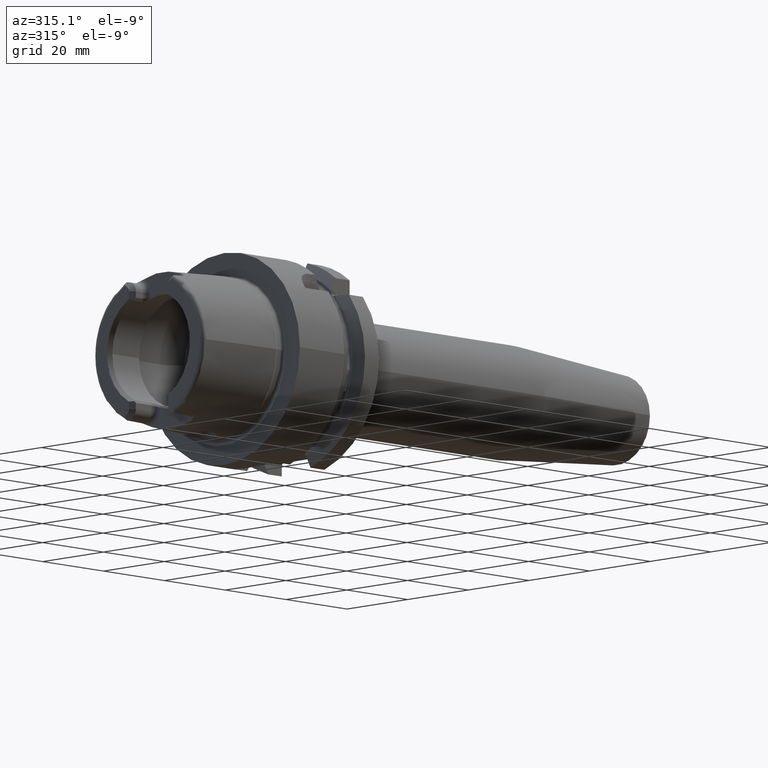
[diagram: clean part render]
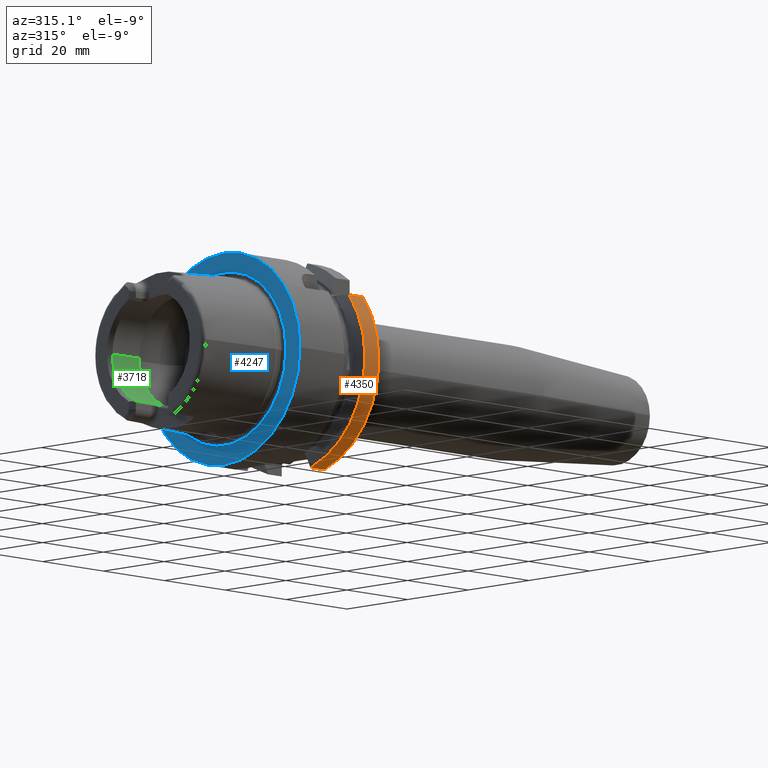
[diagram: same view with three faces highlighted in distinct colors, each labeled with its STEP entity id]
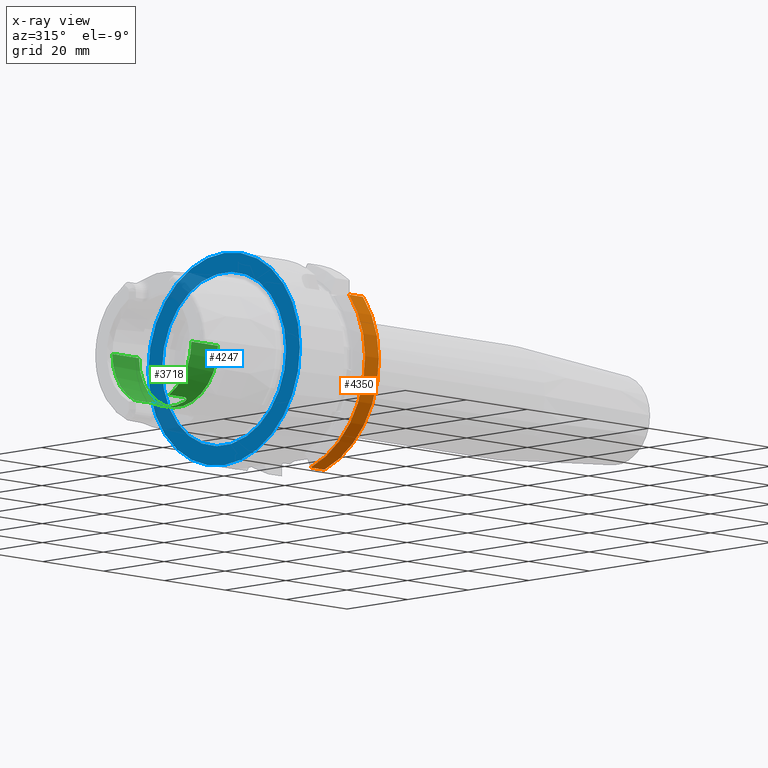
[diagram: x-ray of the same camera — body ghosted, the three highlighted faces saturated]
A machine part, auxiliary view with three faces highlighted in distinct colors.
The next image is the same camera in x-ray (body ghosted, the three faces saturated) — at least one of them is partly hidden behind the body in this view.
Their STEP definitions:

[orange] entity #4350 — the highlighted cylindrical surface (partial cylindrical patch) has radius 25 mm, axis along (1, 0, 0).
#1019=CARTESIAN_POINT('',(2.595E1,0.E0,0.E0));
#1020=DIRECTION('',(1.E0,0.E0,0.E0));
#1021=DIRECTION('',(0.E0,-7.893060243024E-1,6.14E-1));
#1022=AXIS2_PLACEMENT_3D('',#1019,#1020,#1021);
#1024=DIRECTION('',(1.E0,0.E0,0.E0));
#1025=VECTOR('',#1024,4.558067168511E0);
#1026=CARTESIAN_POINT('',(2.139193283149E1,-7.0175E0,-2.399488890889E1));
#1027=LINE('',#1026,#1025);
#1028=CARTESIAN_POINT('',(2.139193283149E1,0.E0,0.E0));
#1029=DIRECTION('',(-1.E0,0.E0,0.E0));
#1030=DIRECTION('',(0.E0,-2.807E-1,-9.597955563556E-1));
#1031=AXIS2_PLACEMENT_3D('',#1028,#1029,#1030);
#1033=DIRECTION('',(1.E0,0.E0,0.E0));
#1034=VECTOR('',#1033,4.558067168511E0);
#1035=CARTESIAN_POINT('',(2.139193283149E1,-1.973265060756E1,1.535E1));
#1036=LINE('',#1035,#1034);
#1876=CARTESIAN_POINT('',(2.139193283149E1,-7.0175E0,-2.399488890889E1));
#1949=CARTESIAN_POINT('',(2.139193283149E1,-1.973265060756E1,1.535E1));
#3004=VERTEX_POINT('',#1876);
#3051=VERTEX_POINT('',#1949);
#3151=CARTESIAN_POINT('',(2.595E1,-1.973265060756E1,1.535E1));
#3152=VERTEX_POINT('',#3151);
#3193=CARTESIAN_POINT('',(2.595E1,-7.0175E0,-2.399488890889E1));
#3194=VERTEX_POINT('',#3193);
#4335=CARTESIAN_POINT('',(-2.74425E1,0.E0,0.E0));
#4336=DIRECTION('',(1.E0,0.E0,0.E0));
#4337=DIRECTION('',(0.E0,-1.E0,0.E0));
#4338=AXIS2_PLACEMENT_3D('',#4335,#4336,#4337);
#4339=CYLINDRICAL_SURFACE('',#4338,2.5E1);
#4341=ORIENTED_EDGE('',*,*,#4340,.T.);
#4343=ORIENTED_EDGE('',*,*,#4342,.F.);
#4345=ORIENTED_EDGE('',*,*,#4344,.T.);
#4347=ORIENTED_EDGE('',*,*,#4346,.T.);
#4348=EDGE_LOOP('',(#4341,#4343,#4345,#4347));
#4349=FACE_OUTER_BOUND('',#4348,.F.);
#4350=ADVANCED_FACE('',(#4349),#4339,.T.);
#1023=CIRCLE('',#1022,2.5E1);
#1032=CIRCLE('',#1031,2.5E1);
#4340=EDGE_CURVE('',#3152,#3194,#1023,.T.);
#4342=EDGE_CURVE('',#3004,#3194,#1027,.T.);
#4344=EDGE_CURVE('',#3004,#3051,#1032,.T.);
#4346=EDGE_CURVE('',#3051,#3152,#1036,.T.);

[blue] entity #4247 — the highlighted planar face has unit normal (1, 0, 0).
#867=CARTESIAN_POINT('',(0.E0,0.E0,0.E0));
#868=DIRECTION('',(1.E0,0.E0,0.E0));
#869=DIRECTION('',(0.E0,1.E0,0.E0));
#870=AXIS2_PLACEMENT_3D('',#867,#868,#869);
#872=CARTESIAN_POINT('',(0.E0,0.E0,0.E0));
#873=DIRECTION('',(-1.E0,0.E0,0.E0));
#874=DIRECTION('',(0.E0,1.E0,0.E0));
#875=AXIS2_PLACEMENT_3D('',#872,#873,#874);
#877=CARTESIAN_POINT('',(0.E0,0.E0,0.E0));
#878=DIRECTION('',(-1.E0,0.E0,0.E0));
#879=DIRECTION('',(0.E0,-1.E0,0.E0));
#880=AXIS2_PLACEMENT_3D('',#877,#878,#879);
#882=CARTESIAN_POINT('',(0.E0,0.E0,0.E0));
#883=DIRECTION('',(-1.E0,0.E0,0.E0));
#884=DIRECTION('',(0.E0,1.E0,0.E0));
#885=AXIS2_PLACEMENT_3D('',#882,#883,#884);
#2801=CARTESIAN_POINT('',(0.E0,-2.04248E1,0.E0));
#2802=VERTEX_POINT('',#2801);
#2803=CARTESIAN_POINT('',(0.E0,2.04248E1,0.E0));
#2804=VERTEX_POINT('',#2803);
#3143=CARTESIAN_POINT('',(0.E0,2.5E1,0.E0));
#3144=CARTESIAN_POINT('',(0.E0,-2.5E1,0.E0));
#3145=VERTEX_POINT('',#3143);
#3146=VERTEX_POINT('',#3144);
#4232=CARTESIAN_POINT('',(0.E0,0.E0,0.E0));
#4233=DIRECTION('',(1.E0,0.E0,0.E0));
#4234=DIRECTION('',(0.E0,-1.E0,0.E0));
#4235=AXIS2_PLACEMENT_3D('',#4232,#4233,#4234);
#4236=PLANE('',#4235);
#4238=ORIENTED_EDGE('',*,*,#4237,.T.);
#4240=ORIENTED_EDGE('',*,*,#4239,.F.);
#4241=EDGE_LOOP('',(#4238,#4240));
#4242=FACE_OUTER_BOUND('',#4241,.F.);
#4243=ORIENTED_EDGE('',*,*,#4227,.T.);
#4244=ORIENTED_EDGE('',*,*,#4211,.T.);
#4245=EDGE_LOOP('',(#4243,#4244));
#4246=FACE_BOUND('',#4245,.F.);
#4247=ADVANCED_FACE('',(#4242,#4246),#4236,.F.);
#871=CIRCLE('',#870,2.5E1);
#876=CIRCLE('',#875,2.5E1);
#881=CIRCLE('',#880,2.04248E1);
#886=CIRCLE('',#885,2.04248E1);
#4211=EDGE_CURVE('',#2804,#2802,#886,.T.);
#4227=EDGE_CURVE('',#2802,#2804,#881,.T.);
#4237=EDGE_CURVE('',#3145,#3146,#871,.T.);
#4239=EDGE_CURVE('',#3145,#3146,#876,.T.);

[green] entity #3718 — the highlighted cylindrical surface (partial cylindrical patch) has radius 13.021 mm, axis along (1, 0, 0).
#164=CARTESIAN_POINT('',(-2.375E1,0.E0,0.E0));
#165=DIRECTION('',(-1.E0,0.E0,0.E0));
#166=DIRECTION('',(0.E0,1.E0,0.E0));
#167=AXIS2_PLACEMENT_3D('',#164,#165,#166);
#186=CARTESIAN_POINT('',(-2.375E1,0.E0,0.E0));
#187=DIRECTION('',(-1.E0,0.E0,0.E0));
#188=DIRECTION('',(0.E0,-4.349817201113E-1,-9.004392834439E-1));
#189=AXIS2_PLACEMENT_3D('',#186,#187,#188);
#456=DIRECTION('',(1.E0,0.E0,0.E0));
#457=VECTOR('',#456,5.E0);
#458=CARTESIAN_POINT('',(-2.375E1,-5.663896977569E0,-1.172461990972E1));
#459=LINE('',#458,#457);
#460=CARTESIAN_POINT('',(-1.706132486541E1,-3.87E0,-1.243259992922E1));
#461=CARTESIAN_POINT('',(-1.705894931913E1,-3.948091654476E0,
-1.240829168279E1));
#462=CARTESIAN_POINT('',(-1.706441309206E1,-4.102870364684E0,
-1.235850704973E1));
#463=CARTESIAN_POINT('',(-1.710340937126E1,-4.332575060023E0,
-1.227984117765E1));
#464=CARTESIAN_POINT('',(-1.717180096637E1,-4.554379111812E0,
-1.219925586913E1));
#465=CARTESIAN_POINT('',(-1.726759596237E1,-4.764243794044E0,
-1.211875654714E1));
#466=CARTESIAN_POINT('',(-1.738971110869E1,-4.958984425980E0,
-1.204028059499E1));
#467=CARTESIAN_POINT('',(-1.753429552224E1,-5.134450973302E0,
-1.196639092679E1));
#468=CARTESIAN_POINT('',(-1.769814688581E1,-5.287549372908E0,
-1.189942311510E1));
#469=CARTESIAN_POINT('',(-1.787965354263E1,-5.418141852278E0,
-1.184043301133E1));
#470=CARTESIAN_POINT('',(-1.807911024602E1,-5.524630321581E0,
-1.179103046127E1));
#471=CARTESIAN_POINT('',(-1.829372880595E1,-5.603842524286E0,
-1.175351168471E1));
#472=CARTESIAN_POINT('',(-1.851977527645E1,-5.652930353736E0,
-1.172992742962E1));
#473=CARTESIAN_POINT('',(-1.867259884466E1,-5.663896977569E0,
-1.172461990972E1));
#474=CARTESIAN_POINT('',(-1.875E1,-5.663896977569E0,-1.172461990972E1));
#476=CARTESIAN_POINT('',(-1.706132486541E1,3.87E0,-1.243259992922E1));
#477=CARTESIAN_POINT('',(-1.706132486541E1,3.369759291873E0,-1.258831406395E1));
#478=CARTESIAN_POINT('',(-1.706132486543E1,2.350461057243E0,-1.283928497214E1));
#479=CARTESIAN_POINT('',(-1.706132486542E1,7.873060254891E-1,
-1.302889312722E1));
#480=CARTESIAN_POINT('',(-1.706132486542E1,-7.873060254894E-1,
-1.302889312722E1));
#481=CARTESIAN_POINT('',(-1.706132486543E1,-2.350461057241E0,
-1.283928497214E1));
#482=CARTESIAN_POINT('',(-1.706132486541E1,-3.369759291876E0,
-1.258831406395E1));
#483=CARTESIAN_POINT('',(-1.706132486541E1,-3.87E0,-1.243259992922E1));
#485=CARTESIAN_POINT('',(-1.875E1,5.663896977569E0,-1.172461990972E1));
#486=CARTESIAN_POINT('',(-1.867253385205E1,5.663896977569E0,-1.172461990972E1));
#487=CARTESIAN_POINT('',(-1.851960965794E1,5.652887713534E0,-1.172994778184E1));
#488=CARTESIAN_POINT('',(-1.829404762981E1,5.603940373139E0,-1.175346518954E1));
#489=CARTESIAN_POINT('',(-1.807890617342E1,5.524545608259E0,-1.179107033680E1));
#490=CARTESIAN_POINT('',(-1.788013782468E1,5.418376947730E0,-1.184032277023E1));
#491=CARTESIAN_POINT('',(-1.769964741780E1,5.288706180038E0,-1.189890407446E1));
#492=CARTESIAN_POINT('',(-1.753651365017E1,5.136729908552E0,-1.196540626531E1));
#493=CARTESIAN_POINT('',(-1.739224734480E1,4.962438291892E0,-1.203885194320E1));
#494=CARTESIAN_POINT('',(-1.726976173003E1,4.768262064128E0,-1.211717470493E1));
#495=CARTESIAN_POINT('',(-1.717314189077E1,4.558070073865E0,-1.219788504272E1));
#496=CARTESIAN_POINT('',(-1.710382652775E1,4.334631930509E0,-1.227912648142E1));
#497=CARTESIAN_POINT('',(-1.706445401734E1,4.103717960171E0,-1.235823255338E1));
#498=CARTESIAN_POINT('',(-1.705894190168E1,3.948335489392E0,-1.240821578224E1));
#499=CARTESIAN_POINT('',(-1.706132486541E1,3.87E0,-1.243259992922E1));
#501=DIRECTION('',(1.E0,0.E0,0.E0));
#502=VECTOR('',#501,5.E0);
#503=CARTESIAN_POINT('',(-2.375E1,5.663896977569E0,-1.172461990972E1));
#504=LINE('',#503,#502);
#505=DIRECTION('',(-1.E0,0.E0,0.E0));
#506=VECTOR('',#505,8.766098951869E0);
#507=CARTESIAN_POINT('',(-1.498390104813E1,1.3021E1,0.E0));
#508=LINE('',#507,#506);
#509=CARTESIAN_POINT('',(-1.498390104813E1,0.E0,0.E0));
#510=DIRECTION('',(-1.E0,0.E0,0.E0));
#511=DIRECTION('',(0.E0,1.E0,0.E0));
#512=AXIS2_PLACEMENT_3D('',#509,#510,#511);
#514=DIRECTION('',(-1.E0,0.E0,0.E0));
#515=VECTOR('',#514,8.766098951869E0);
#516=CARTESIAN_POINT('',(-1.498390104813E1,-1.3021E1,0.E0));
#517=LINE('',#516,#515);
#2888=CARTESIAN_POINT('',(-1.875E1,-5.663896977569E0,-1.172461990972E1));
#2889=VERTEX_POINT('',#2888);
#2890=CARTESIAN_POINT('',(-1.706132486541E1,-3.87E0,-1.243259992922E1));
#2891=VERTEX_POINT('',#2890);
#2892=CARTESIAN_POINT('',(-1.875E1,5.663896977569E0,-1.172461990972E1));
#2893=VERTEX_POINT('',#2892);
#2894=CARTESIAN_POINT('',(-1.706132486541E1,3.87E0,-1.243259992922E1));
#2895=VERTEX_POINT('',#2894);
#3163=CARTESIAN_POINT('',(-1.498390104813E1,1.3021E1,0.E0));
#3164=VERTEX_POINT('',#3163);
#3165=CARTESIAN_POINT('',(-2.375E1,1.3021E1,0.E0));
#3166=VERTEX_POINT('',#3165);
#3175=CARTESIAN_POINT('',(-1.498390104813E1,-1.3021E1,0.E0));
#3176=VERTEX_POINT('',#3175);
#3177=CARTESIAN_POINT('',(-2.375E1,-1.3021E1,0.E0));
#3178=VERTEX_POINT('',#3177);
#3183=CARTESIAN_POINT('',(-2.375E1,-5.663896977569E0,-1.172461990972E1));
#3184=VERTEX_POINT('',#3183);
#3185=CARTESIAN_POINT('',(-2.375E1,5.663896977569E0,-1.172461990972E1));
#3186=VERTEX_POINT('',#3185);
#3694=CARTESIAN_POINT('',(-2.66425E1,0.E0,0.E0));
#3695=DIRECTION('',(1.E0,0.E0,0.E0));
#3696=DIRECTION('',(0.E0,-1.E0,0.E0));
#3697=AXIS2_PLACEMENT_3D('',#3694,#3695,#3696);
#3698=CYLINDRICAL_SURFACE('',#3697,1.3021E1);
#3700=ORIENTED_EDGE('',*,*,#3699,.T.);
#3702=ORIENTED_EDGE('',*,*,#3701,.F.);
#3704=ORIENTED_EDGE('',*,*,#3703,.F.);
#3706=ORIENTED_EDGE('',*,*,#3705,.F.);
#3707=ORIENTED_EDGE('',*,*,#3686,.F.);
#3708=ORIENTED_EDGE('',*,*,#3434,.F.);
#3710=ORIENTED_EDGE('',*,*,#3709,.F.);
#3712=ORIENTED_EDGE('',*,*,#3711,.T.);
#3714=ORIENTED_EDGE('',*,*,#3713,.T.);
#3715=ORIENTED_EDGE('',*,*,#3450,.F.);
#3716=EDGE_LOOP('',(#3700,#3702,#3704,#3706,#3707,#3708,#3710,#3712,#3714,
#3715));
#3717=FACE_OUTER_BOUND('',#3716,.F.);
#3718=ADVANCED_FACE('',(#3717),#3698,.F.);
#168=CIRCLE('',#167,1.3021E1);
#190=CIRCLE('',#189,1.3021E1);
#475=B_SPLINE_CURVE_WITH_KNOTS('',3,(#460,#461,#462,#463,#464,#465,#466,#467,
#468,#469,#470,#471,#472,#473,#474),.UNSPECIFIED.,.F.,.F.,(4,1,1,1,1,1,1,1,1,1,
1,1,4),(0.E0,8.333333333333E-2,1.666666666667E-1,2.5E-1,3.333333333333E-1,
4.166666666667E-1,5.E-1,5.833333333333E-1,6.666666666667E-1,7.5E-1,
8.333333333333E-1,9.166666666667E-1,1.E0),.UNSPECIFIED.);
#484=B_SPLINE_CURVE_WITH_KNOTS('',3,(#476,#477,#478,#479,#480,#481,#482,#483),
.UNSPECIFIED.,.F.,.F.,(4,1,1,1,1,4),(0.E0,2.E-1,4.E-1,6.E-1,8.E-1,1.E0),
.UNSPECIFIED.);
#500=B_SPLINE_CURVE_WITH_KNOTS('',3,(#485,#486,#487,#488,#489,#490,#491,#492,
#493,#494,#495,#496,#497,#498,#499),.UNSPECIFIED.,.F.,.F.,(4,1,1,1,1,1,1,1,1,1,
1,1,4),(0.E0,8.333333333333E-2,1.666666666667E-1,2.5E-1,3.333333333333E-1,
4.166666666667E-1,5.E-1,5.833333333333E-1,6.666666666667E-1,7.5E-1,
8.333333333333E-1,9.166666666667E-1,1.E0),.UNSPECIFIED.);
#513=CIRCLE('',#512,1.3021E1);
#3434=EDGE_CURVE('',#3166,#3186,#168,.T.);
#3450=EDGE_CURVE('',#3184,#3178,#190,.T.);
#3686=EDGE_CURVE('',#3186,#2893,#504,.T.);
#3699=EDGE_CURVE('',#3184,#2889,#459,.T.);
#3701=EDGE_CURVE('',#2891,#2889,#475,.T.);
#3703=EDGE_CURVE('',#2895,#2891,#484,.T.);
#3705=EDGE_CURVE('',#2893,#2895,#500,.T.);
#3709=EDGE_CURVE('',#3164,#3166,#508,.T.);
#3711=EDGE_CURVE('',#3164,#3176,#513,.T.);
#3713=EDGE_CURVE('',#3176,#3178,#517,.T.);